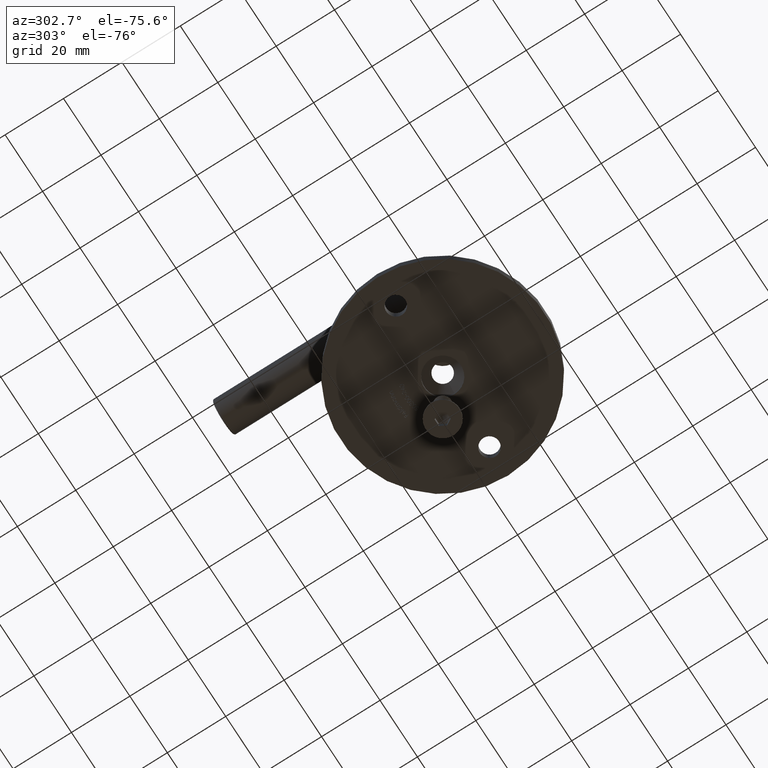
[diagram: clean part render]
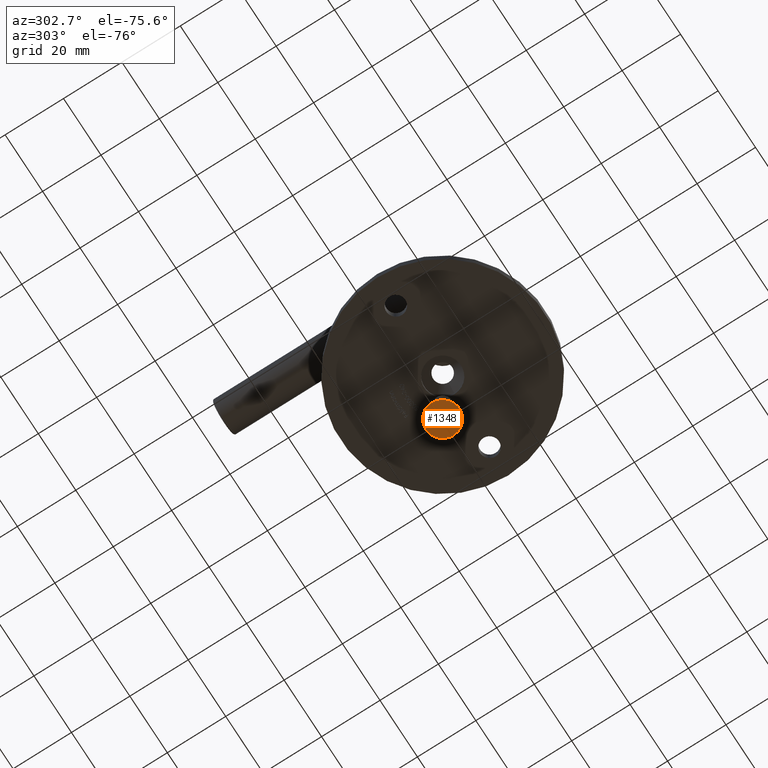
[diagram: same view with one face highlighted and labeled with its STEP entity id]
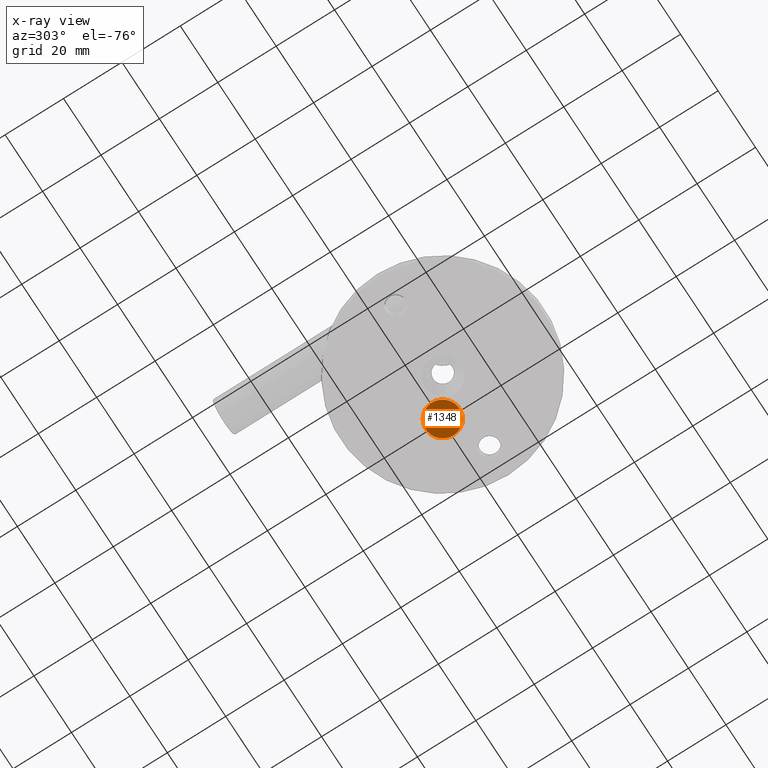
[diagram: x-ray of the same camera — body ghosted, the highlighted face saturated]
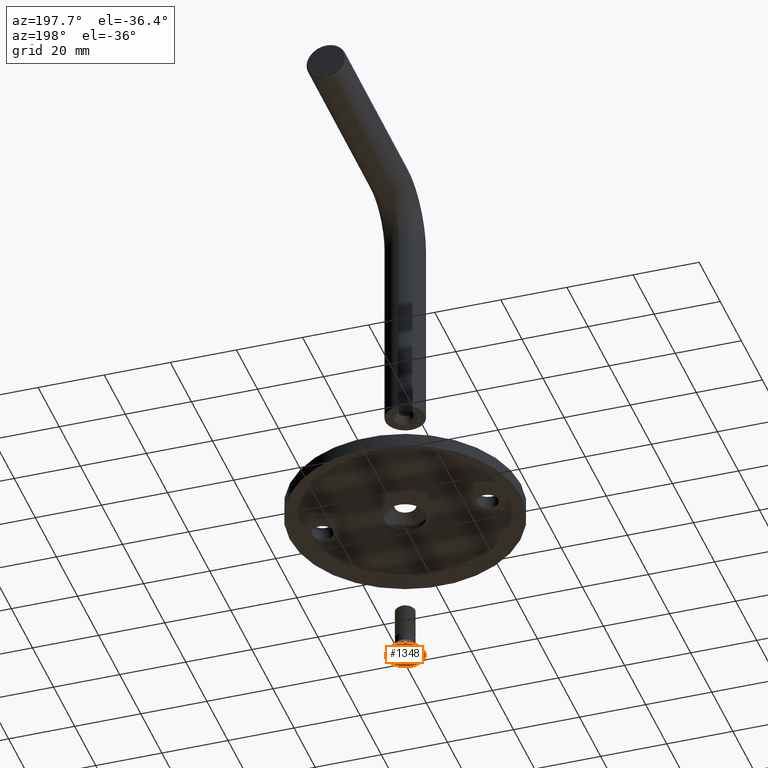
[diagram: same view with one face highlighted and labeled with its STEP entity id]
A machine part, auxiliary view. The second image highlights one B-rep face of the part: STEP entity #1348.
The next image is the same camera in x-ray: the body ghosted, the highlighted face saturated — about 0% of this face is hidden behind the body in this view.
A second angle (auxiliary view) of the same face is appended — the face is thin or edge-on in the first view.
In plain terms, the highlighted planar face has unit normal (0, -0, -1).
Its self-contained STEP definition (entity closure, byte-faithful):
#64 = FACE_BOUND ( 'NONE', #3507, .T. ) ;
#153 = VERTEX_POINT ( 'NONE', #12545 ) ;
#308 = DIRECTION ( 'NONE',  ( 0.000000000000000000, 1.000000000000000000, 0.000000000000000000 ) ) ;
#550 = ORIENTED_EDGE ( 'NONE', *, *, #13098, .T. ) ;
#581 = CARTESIAN_POINT ( 'NONE',  ( 0.000000000000000000, 0.000000000000000000, 5.785000000000000142 ) ) ;
#791 = CIRCLE ( 'NONE', #12680, 5.785000000000000142 ) ;
#1087 = LINE ( 'NONE', #3392, #15041 ) ;
#1153 = DIRECTION ( 'NONE',  ( 0.000000000000000000, -0.4999999999999999445, 0.8660254037844385966 ) ) ;
#1348 = ADVANCED_FACE ( 'NONE', ( #7405, #64 ), #17145, .T. ) ;
#1419 = CARTESIAN_POINT ( 'NONE',  ( 0.000000000000000000, 0.000000000000000000, 0.000000000000000000 ) ) ;
#1456 = CIRCLE ( 'NONE', #14684, 5.785000000000000142 ) ;
#2085 = DIRECTION ( 'NONE',  ( -1.000000000000000000, -0.000000000000000000, -0.000000000000000000 ) ) ;
#2359 = LINE ( 'NONE', #15395, #13342 ) ;
#2626 = ORIENTED_EDGE ( 'NONE', *, *, #4324, .T. ) ;
#2771 = EDGE_CURVE ( 'NONE', #4190, #6983, #6918, .T. ) ;
#3392 = CARTESIAN_POINT ( 'NONE',  ( 0.000000000000000000, 1.160474041071148710, 2.009999999999999787 ) ) ;
#3507 = EDGE_LOOP ( 'NONE', ( #7141, #14145, #13596, #12212, #10813, #550 ) ) ;
#4190 = VERTEX_POINT ( 'NONE', #14151 ) ;
#4306 = LINE ( 'NONE', #12149, #10663 ) ;
#4324 = EDGE_CURVE ( 'NONE', #11721, #16854, #791, .T. ) ;
#4720 = CARTESIAN_POINT ( 'NONE',  ( 0.000000000000000000, 0.000000000000000000, 0.000000000000000000 ) ) ;
#4812 = VECTOR ( 'NONE', #8728, 1000.000000000000000 ) ;
#5000 = CARTESIAN_POINT ( 'NONE',  ( 0.000000000000000000, -2.320948082142291646, 2.168404344971008868E-16 ) ) ;
#5048 = LINE ( 'NONE', #9357, #15216 ) ;
#5323 = CARTESIAN_POINT ( 'NONE',  ( 0.000000000000000000, 2.320948082142295643, 8.350257052548250149E-16 ) ) ;
#6102 = DIRECTION ( 'NONE',  ( 0.000000000000000000, -1.000000000000000000, 0.000000000000000000 ) ) ;
#6912 = DIRECTION ( 'NONE',  ( 0.000000000000000000, 0.000000000000000000, 1.000000000000000000 ) ) ;
#6918 = LINE ( 'NONE', #15548, #4812 ) ;
#6983 = VERTEX_POINT ( 'NONE', #5000 ) ;
#7141 = ORIENTED_EDGE ( 'NONE', *, *, #2771, .T. ) ;
#7405 = FACE_OUTER_BOUND ( 'NONE', #12836, .T. ) ;
#7955 = EDGE_CURVE ( 'NONE', #17019, #9864, #5048, .T. ) ;
#8715 = LINE ( 'NONE', #14886, #12766 ) ;
#8728 = DIRECTION ( 'NONE',  ( 0.000000000000000000, -0.4999999999999995004, -0.8660254037844389297 ) ) ;
#9251 = AXIS2_PLACEMENT_3D ( 'NONE', #1419, #10536, #17256 ) ;
#9357 = CARTESIAN_POINT ( 'NONE',  ( 0.000000000000000000, 1.160474041071148710, -2.009999999999999787 ) ) ;
#9592 = DIRECTION ( 'NONE',  ( -1.000000000000000000, -0.000000000000000000, -0.000000000000000000 ) ) ;
#9807 = EDGE_CURVE ( 'NONE', #9864, #153, #4306, .T. ) ;
#9864 = VERTEX_POINT ( 'NONE', #5323 ) ;
#10461 = EDGE_CURVE ( 'NONE', #14051, #17019, #8715, .T. ) ;
#10536 = DIRECTION ( 'NONE',  ( -1.000000000000000000, 0.000000000000000000, -0.000000000000000000 ) ) ;
#10663 = VECTOR ( 'NONE', #1153, 1000.000000000000114 ) ;
#10813 = ORIENTED_EDGE ( 'NONE', *, *, #9807, .T. ) ;
#11721 = VERTEX_POINT ( 'NONE', #581 ) ;
#12149 = CARTESIAN_POINT ( 'NONE',  ( 0.000000000000000000, 2.320948082142295643, 8.350257052548250149E-16 ) ) ;
#12212 = ORIENTED_EDGE ( 'NONE', *, *, #7955, .T. ) ;
#12545 = CARTESIAN_POINT ( 'NONE',  ( 0.000000000000000000, 1.160474041071148710, 2.009999999999999787 ) ) ;
#12680 = AXIS2_PLACEMENT_3D ( 'NONE', #15026, #9592, #6912 ) ;
#12766 = VECTOR ( 'NONE', #308, 1000.000000000000000 ) ;
#12800 = ORIENTED_EDGE ( 'NONE', *, *, #15544, .T. ) ;
#12836 = EDGE_LOOP ( 'NONE', ( #2626, #12800 ) ) ;
#12926 = CARTESIAN_POINT ( 'NONE',  ( -0.000000000000000000, -1.160474041071146267, -2.009999999999999787 ) ) ;
#12995 = EDGE_CURVE ( 'NONE', #6983, #14051, #2359, .T. ) ;
#13098 = EDGE_CURVE ( 'NONE', #153, #4190, #1087, .T. ) ;
#13342 = VECTOR ( 'NONE', #15283, 1000.000000000000000 ) ;
#13596 = ORIENTED_EDGE ( 'NONE', *, *, #10461, .T. ) ;
#14051 = VERTEX_POINT ( 'NONE', #12926 ) ;
#14145 = ORIENTED_EDGE ( 'NONE', *, *, #12995, .T. ) ;
#14151 = CARTESIAN_POINT ( 'NONE',  ( 0.000000000000000000, -1.160474041071146489, 2.009999999999999787 ) ) ;
#14684 = AXIS2_PLACEMENT_3D ( 'NONE', #4720, #2085, #15373 ) ;
#14886 = CARTESIAN_POINT ( 'NONE',  ( -0.000000000000000000, -1.160474041071146267, -2.009999999999999787 ) ) ;
#15026 = CARTESIAN_POINT ( 'NONE',  ( 0.000000000000000000, 0.000000000000000000, 0.000000000000000000 ) ) ;
#15041 = VECTOR ( 'NONE', #6102, 1000.000000000000000 ) ;
#15216 = VECTOR ( 'NONE', #16161, 1000.000000000000000 ) ;
#15283 = DIRECTION ( 'NONE',  ( -0.000000000000000000, 0.4999999999999996114, -0.8660254037844389297 ) ) ;
#15373 = DIRECTION ( 'NONE',  ( 0.000000000000000000, 0.000000000000000000, 1.000000000000000000 ) ) ;
#15395 = CARTESIAN_POINT ( 'NONE',  ( 0.000000000000000000, -2.320948082142292535, 4.090768232818179312E-17 ) ) ;
#15544 = EDGE_CURVE ( 'NONE', #16854, #11721, #1456, .T. ) ;
#15548 = CARTESIAN_POINT ( 'NONE',  ( 0.000000000000000000, -1.160474041071146489, 2.009999999999999787 ) ) ;
#16161 = DIRECTION ( 'NONE',  ( 0.000000000000000000, 0.4999999999999996114, 0.8660254037844388186 ) ) ;
#16208 = CARTESIAN_POINT ( 'NONE',  ( 0.000000000000000000, 7.084581733067438024E-16, -5.785000000000000142 ) ) ;
#16854 = VERTEX_POINT ( 'NONE', #16208 ) ;
#16912 = CARTESIAN_POINT ( 'NONE',  ( 0.000000000000000000, 1.160474041071148710, -2.009999999999999787 ) ) ;
#17019 = VERTEX_POINT ( 'NONE', #16912 ) ;
#17145 = PLANE ( 'NONE',  #9251 ) ;
#17256 = DIRECTION ( 'NONE',  ( -0.000000000000000000, 0.000000000000000000, 1.000000000000000000 ) ) ;